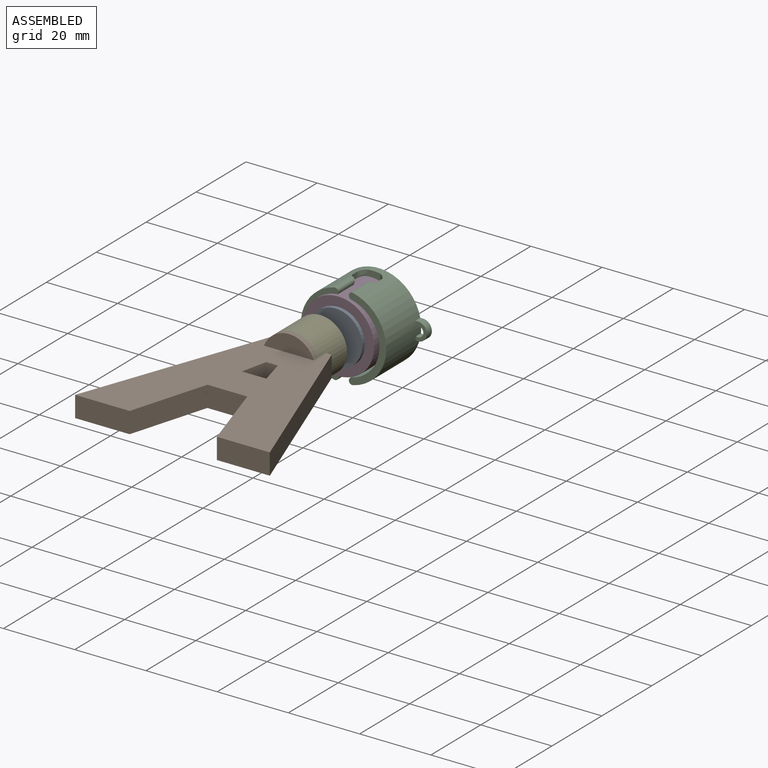
[diagram: assembled view]
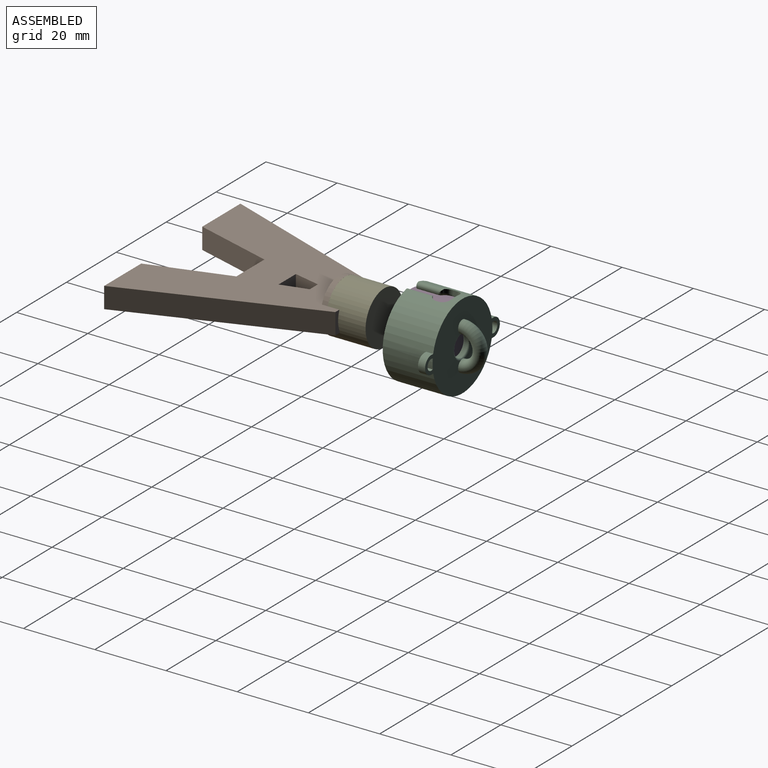
[diagram: assembled view, second angle]
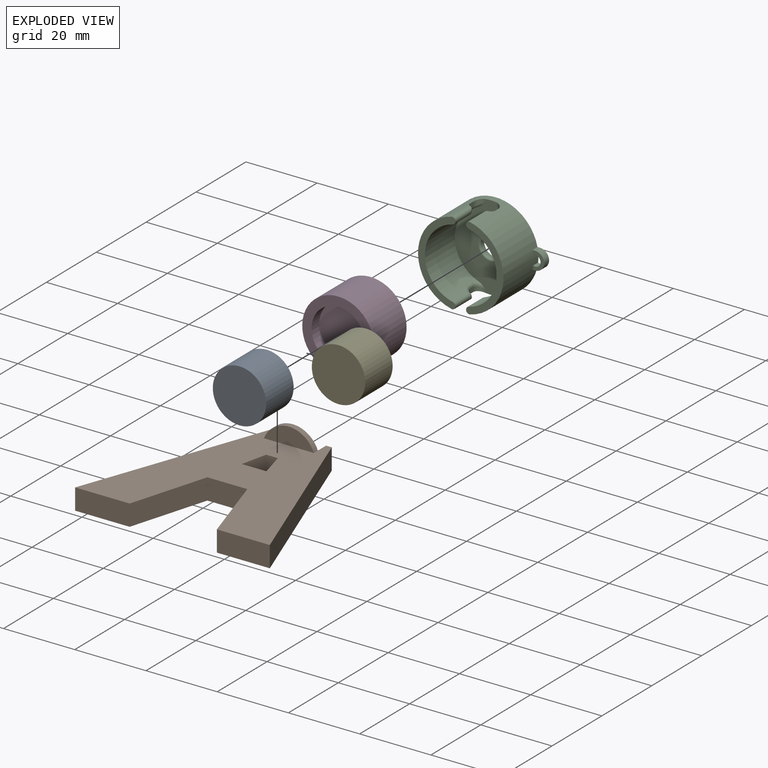
[diagram: exploded view]
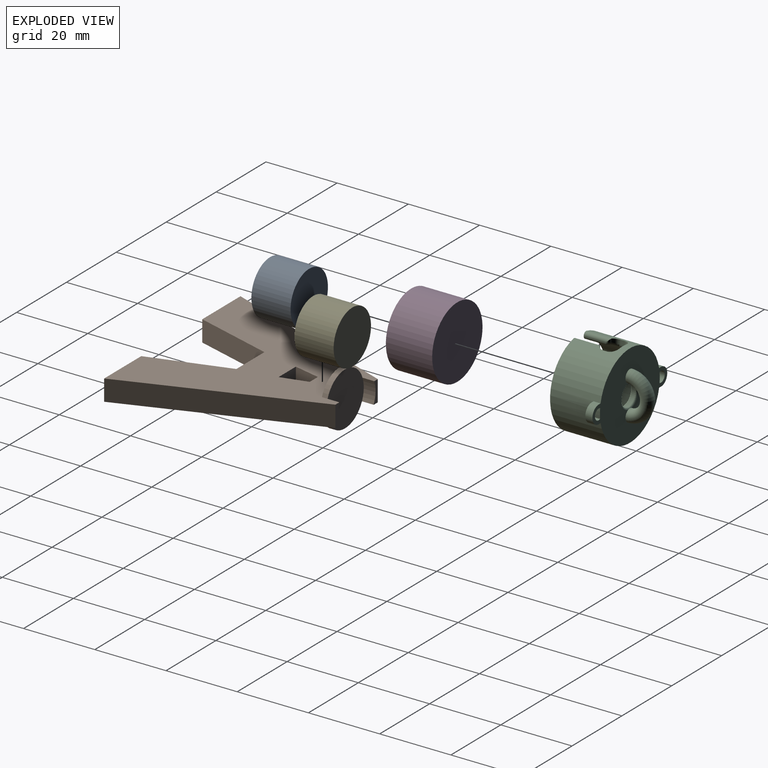
[diagram: exploded view, second angle]
ASSEMBLY  parts=5 mates=3
PART A: 3 faces, bbox 15x11x15 mm
  f0: cylinder r=7.5mm len=15mm, axis (0,1,0), area 518.4mm2, adj f1,f2
  f1: plane 15x15mm, normal (0,-1,0), area 176.7mm2, adj f0
  f2: plane 15x15mm, normal (0,1,0), area 176.7mm2, adj f0
PART B: 22 faces, bbox 54.7x15x51.7 mm
  f0: plane 5.9x1.63mm, normal (0,0,1), area 6.5mm2, adj f5,f13,f14,f20
  f1: plane 21.96x6.82mm, normal (-0.96,0,-0.3), area 135.7mm2, adj f2,f12,f13,f14
  f2: plane 14.87x5.9mm, normal (0,0,-1), area 87.8mm2, adj f1,f3,f13,f14
  f3: plane 51.75x18.83mm, normal (0.94,0,0.34), area 324.9mm2, adj f2,f4,f13,f14
  f4: plane 5.9x1.82mm, normal (0,0,1), area 7.7mm2, adj f3,f13,f14,f19
  f5: plane 51.75x18.83mm, normal (-0.94,0,0.34), area 324.9mm2, adj f0,f6,f13,f14
  f6: plane 15.32x5.9mm, normal (0,0,-1), area 90.4mm2, adj f5,f7,f13,f14
  f7: plane 21.96x6.45mm, normal (0.96,0,-0.28), area 135mm2, adj f6,f12,f13,f14
  f8: plane 7.38x5.9mm, normal (0.98,0,-0.22), area 44.7mm2, adj f9,f11,f13,f14
  f9: plane 5.9x3.27mm, normal (0,0,-1), area 19.3mm2, adj f8,f10,f13,f14
  f10: plane 7.38x5.9mm, normal (-0.97,0,-0.26), area 45.1mm2, adj f9,f11,f13,f14
  f11: plane 6.91x5.9mm, normal (0,0,1), area 40.8mm2, adj f8,f10,f13,f14
  f12: plane 11.21x5.9mm, normal (0,0,-1), area 66.1mm2, adj f1,f7,f13,f14
  f13: plane 54.67x51.75mm, normal (0,-1,0), area 1356.2mm2, adj f0,f1,f2,f3,f4,f5,f6,f7
  f14: plane 54.67x51.75mm, normal (0,1,0), area 1358.5mm2, adj f0,f1,f2,f3,f4,f5,f6,f7
  f15: plane 13.55x4.28mm, normal (0,0,-1), area 41.6mm2, adj f14,f16
  f16: cylinder r=7.5mm len=13.55mm, axis (0,0,1), area 27mm2, adj f14,f15,f21
  f17: cylinder r=7.5mm len=14.01mm, axis (0,0,1), area 28.9mm2, adj f13,f18,f21
  f18: plane 14.01x4.82mm, normal (0,0,-1), area 49.1mm2, adj f13,f17
  f19: cylinder r=7.5mm len=5.9mm, axis (0,0,1), area 20mm2, adj f4,f13,f14,f21
  f20: cylinder r=7.5mm len=5.9mm, axis (0,0,1), area 20mm2, adj f0,f13,f14,f21
  f21: plane 15x15mm, normal (0,0,1), area 176.7mm2, adj f16,f17,f19,f20
PART C: 68 faces, bbox 30.4x24.4x21.7 mm
  f0: cylinder r=10.1mm len=19.71mm, axis (0,0,-1), area 308.7mm2, adj f1,f2,f8,f24,f25,f26,f30,f31
  f1: plane 23.48x10.5mm, normal (0,0,1), area 59.5mm2, adj f0,f5,f48,f54,f56,f58,f64,f65
  f2: bspline ~3.09x2.33mm, area 3.9mm2, adj f0,f17,f31,f66
  f3: bspline ~3.09x2.33mm, area 3.9mm2, adj f6,f19,f23,f52
  f4: plane 30x24mm, normal (0,0,-1), area 410.5mm2, adj f5,f9,f32,f33,f35,f36,f38,f39
  f5: cylinder r=12mm len=24mm, axis (0,0,-1), area 910.2mm2, adj f1,f4,f7,f8,f10,f11,f12,f13
  f6: cylinder r=10.1mm len=19.71mm, axis (0,0,-1), area 308.7mm2, adj f3,f7,f8,f22,f23,f27,f28,f29
  f7: plane 23.48x10.5mm, normal (0,0,1), area 59.5mm2, adj f5,f6,f49,f50,f51,f59,f60,f62
  f8: plane 24.35x20.55mm, normal (0,0,1), area 296.3mm2, adj f0,f5,f6,f15,f16,f18,f21,f22
  f9: torus R=5mm, axis (1,0,0), area 172.7mm2, adj f4,f44,f47
  f10: plane 1.33x1mm, normal (1,0,0), area 1.3mm2, adj f5,f16,f17,f31
  f11: plane 1.33x1mm, normal (-1,0,0), area 1.3mm2, adj f5,f14,f15,f28
  f12: plane 1.33x1mm, normal (1,0,0), area 1.3mm2, adj f5,f20,f21,f25
  f13: plane 1.33x1mm, normal (-1,0,0), area 1.3mm2, adj f5,f18,f19,f23
  f14: cylinder r=2mm len=1.9mm, axis (0,-1,0), area 2.8mm2, adj f5,f11,f29,f62,f63
  f15: cylinder r=2mm len=2mm, axis (0,1,0), area 3.5mm2, adj f5,f8,f11,f27
  f16: cylinder r=2mm len=2mm, axis (0,-1,0), area 3.5mm2, adj f5,f8,f10,f30
  f17: cylinder r=2mm len=1.9mm, axis (0,1,0), area 2.8mm2, adj f2,f5,f10,f65,f67
  f18: cylinder r=2mm len=2mm, axis (0,1,0), area 3.5mm2, adj f5,f8,f13,f22
  f19: cylinder r=2mm len=1.9mm, axis (0,-1,0), area 2.8mm2, adj f3,f5,f13,f51,f53
  f20: cylinder r=2mm len=1.9mm, axis (0,1,0), area 2.8mm2, adj f5,f12,f24,f56,f57
  f21: cylinder r=2mm len=2mm, axis (0,-1,0), area 3.5mm2, adj f5,f8,f12,f26
  f22: bspline ~3.56x3.11mm, area 3.5mm2, adj f6,f8,f18,f23
  f23: cylinder r=1mm len=1mm, axis (0,0,-1), area 1.2mm2, adj f3,f6,f13,f22
  f24: bspline ~3.62x2.53mm, area 3.9mm2, adj f0,f20,f25,f55
  f25: cylinder r=1mm len=1mm, axis (0,0,-1), area 1.2mm2, adj f0,f12,f24,f26
  f26: bspline ~3.56x3.11mm, area 3.5mm2, adj f0,f8,f21,f25
  f27: bspline ~3.56x3.11mm, area 3.5mm2, adj f6,f8,f15,f28
  f28: cylinder r=1mm len=1mm, axis (0,0,-1), area 1.2mm2, adj f6,f11,f27,f29
  f29: bspline ~3.62x2.53mm, area 3.9mm2, adj f6,f14,f28,f61
  f30: bspline ~3.56x3.11mm, area 3.5mm2, adj f0,f8,f16,f31
  f31: cylinder r=1mm len=1mm, axis (0,0,-1), area 1.2mm2, adj f0,f2,f10,f30
  f32: plane 2x0.76mm, normal (0,-1,0), area 1.5mm2, adj f4,f5,f34,f38
  f33: plane 2x0.76mm, normal (0,1,0), area 1.5mm2, adj f4,f5,f34,f38
  f34: plane 5x3.26mm, normal (0,0,1), area 7.7mm2, adj f5,f32,f33,f38,f41
  f35: plane 2x0.76mm, normal (0,-1,0), area 1.5mm2, adj f4,f5,f37,f39
  f36: plane 2x0.76mm, normal (0,1,0), area 1.5mm2, adj f4,f5,f37,f39
  f37: plane 5x3.26mm, normal (0,0,1), area 7.7mm2, adj f5,f35,f36,f39,f40
  f38: cylinder r=2.5mm len=5mm, axis (0,0,1), area 15.7mm2, adj f4,f32,f33,f34
  f39: cylinder r=2.5mm len=5mm, axis (0,0,-1), area 15.7mm2, adj f4,f35,f36,f37
  f40: cylinder r=1.5mm len=3mm, axis (0,0,1), area 11.8mm2, adj f4,f5,f37
  f41: cylinder r=1.5mm len=3mm, axis (0,0,1), area 11.8mm2, adj f4,f5,f34
  f42: cylinder r=3mm len=6mm, axis (0,0,-1), area 18.8mm2, adj f43,f44,f45,f46,f47
  f43: torus R=3.5mm, axis (0,0,1), area 15.7mm2, adj f8,f42
  f44: bspline ~1.5x0.5mm, area 0.8mm2, adj f9,f42,f45,f46
  f45: torus R=3.5mm, axis (0,0,1), area 6.8mm2, adj f4,f42,f44,f47
  f46: torus R=3.5mm, axis (0,0,1), area 6.8mm2, adj f4,f42,f44,f47
  f47: bspline ~1.5x0.5mm, area 0.8mm2, adj f9,f42,f45,f46
  f48: plane 6.24x0.1mm, normal (1,0,0), area 0.6mm2, adj f1,f54,f55,f56,f57
  f49: plane 6.24x0.1mm, normal (-1,0,0), area 0.6mm2, adj f7,f50,f51,f52,f53
  f50: cylinder r=0.9mm len=6.15mm, axis (0,0,-1), area 7.5mm2, adj f6,f7,f49,f52
  f51: cylinder r=0.9mm len=7.33mm, axis (0,0,-1), area 11mm2, adj f5,f7,f19,f49,f53
  f52: bspline ~1.2x1.18mm, area 1mm2, adj f3,f49,f50,f53
  f53: cylinder r=0.9mm len=0.86mm, axis (0,-1,0), area 0.6mm2, adj f19,f49,f51,f52
  f54: cylinder r=0.9mm len=6.15mm, axis (0,0,-1), area 7.5mm2, adj f0,f1,f48,f55
  f55: bspline ~1.2x1.18mm, area 1mm2, adj f24,f48,f54,f57
  f56: cylinder r=0.9mm len=7.33mm, axis (0,0,-1), area 11mm2, adj f1,f5,f20,f48,f57
  f57: cylinder r=0.9mm len=0.86mm, axis (0,1,0), area 0.6mm2, adj f20,f48,f55,f56
  f58: plane 6.24x0.1mm, normal (1,0,0), area 0.6mm2, adj f1,f64,f65,f66,f67
  f59: plane 6.24x0.1mm, normal (-1,0,0), area 0.6mm2, adj f7,f60,f61,f62,f63
  f60: cylinder r=0.9mm len=6.15mm, axis (0,0,-1), area 7.5mm2, adj f6,f7,f59,f61
  f61: bspline ~1.2x1.18mm, area 1mm2, adj f29,f59,f60,f63
  f62: cylinder r=0.9mm len=7.33mm, axis (0,0,-1), area 11mm2, adj f5,f7,f14,f59,f63
  f63: cylinder r=0.9mm len=0.86mm, axis (0,-1,0), area 0.6mm2, adj f14,f59,f61,f62
  f64: cylinder r=0.9mm len=6.15mm, axis (0,0,-1), area 7.5mm2, adj f0,f1,f58,f66
  f65: cylinder r=0.9mm len=7.33mm, axis (0,0,-1), area 11mm2, adj f1,f5,f17,f58,f67
  f66: bspline ~1.2x1.18mm, area 1mm2, adj f2,f58,f64,f67
  f67: cylinder r=0.9mm len=0.86mm, axis (0,1,0), area 0.6mm2, adj f17,f58,f65,f66
PART D: 5 faces, bbox 20.2x13x20.2 mm
  f0: cylinder r=10.1mm len=20.2mm, axis (0,1,0), area 825mm2, adj f1,f2
  f1: plane 20.2x20.2mm, normal (0,-1,0), area 143.8mm2, adj f0,f3
  f2: plane 20.2x20.2mm, normal (0,1,0), area 320.5mm2, adj f0
  f3: cylinder r=7.5mm len=15mm, axis (0,-1,0), area 146.1mm2, adj f1,f4
  f4: plane 15x15mm, normal (0,-1,0), area 176.7mm2, adj f3
PART E: same geometry as A
PLACE A rot(axis=(0,0,1),180deg) t=(151.01,177.41,133.41)mm
PLACE B rot(axis=(-1,0,0),90deg) t=(151.19,111.08,130.94)mm
PLACE C rot(axis=(1,0,0),90deg) t=(151.81,193.5,133.24)mm
PLACE D t=(151.01,191.5,133.41)mm
PLACE E t=(151.19,171.09,134.17)mm
MATE planar B.f16 <-> E.f0  axis (0,1,0) through (151.19,160.09,134.17)mm
MATE slider A.f0 <-> D.f3  axis (0,1,0) through (151.01,188.41,133.41)mm
MATE planar C.f42 <-> D.f0  axis (0,-1,0) through (151.81,191.5,133.24)mm
